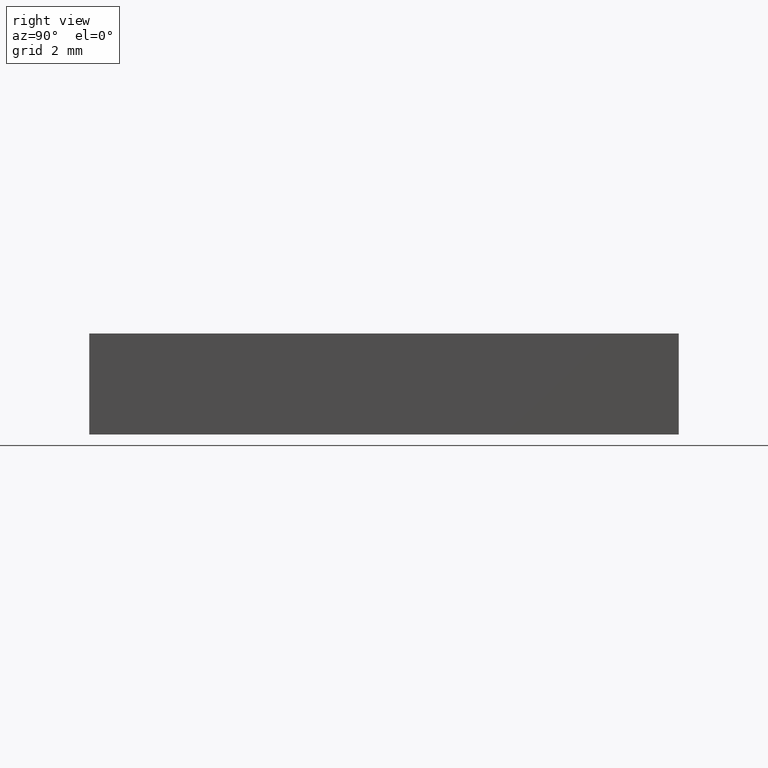
[diagram: clean part render]
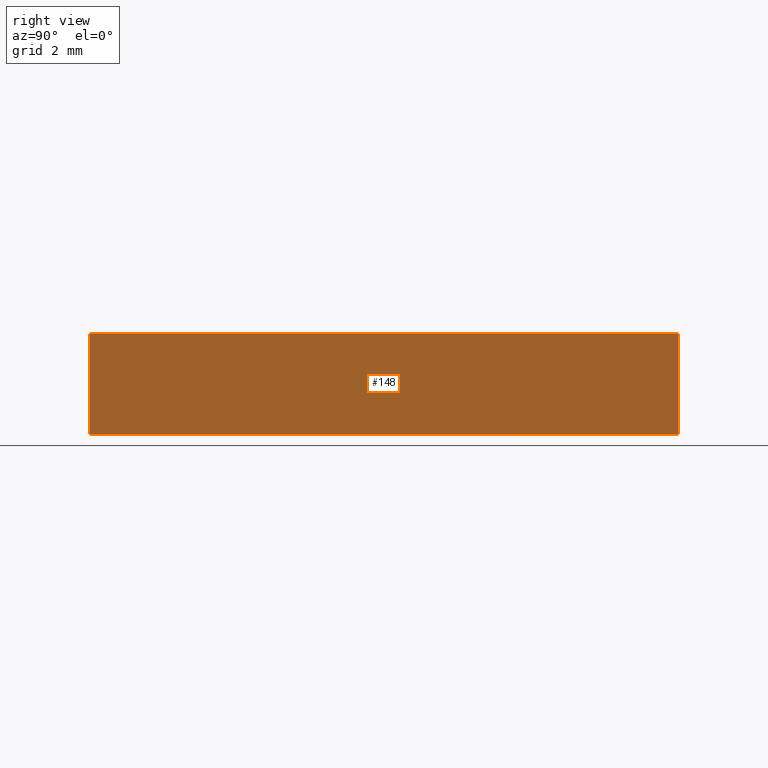
[diagram: same view with one face highlighted and labeled with its STEP entity id]
A machine part, right view. The second image highlights one B-rep face of the part: STEP entity #148.
In plain terms, the highlighted planar face has unit normal (-1, -0, 0).
Its self-contained STEP definition (entity closure, byte-faithful):
#7 = LINE ( 'NONE', #245, #56 ) ;
#20 = LINE ( 'NONE', #299, #270 ) ;
#25 = CARTESIAN_POINT ( 'NONE',  ( 6.148373983739839200, 7.520325203252024700, 0.0000000000000000000 ) ) ;
#32 = LINE ( 'NONE', #266, #207 ) ;
#44 = EDGE_CURVE ( 'NONE', #196, #201, #20, .T. ) ;
#52 = ORIENTED_EDGE ( 'NONE', *, *, #121, .T. ) ;
#56 = VECTOR ( 'NONE', #202, 1000.000000000000000 ) ;
#69 = DIRECTION ( 'NONE',  ( -4.956352788505162800E-017, 1.000000000000000000, -0.0000000000000000000 ) ) ;
#114 = AXIS2_PLACEMENT_3D ( 'NONE', #118, #198, #286 ) ;
#118 = CARTESIAN_POINT ( 'NONE',  ( 6.148373983739839200, 7.520325203252024700, 3.000000000000000000 ) ) ;
#121 = EDGE_CURVE ( 'NONE', #201, #285, #183, .T. ) ;
#126 = DIRECTION ( 'NONE',  ( -4.956352788505162800E-017, 1.000000000000000000, -0.0000000000000000000 ) ) ;
#137 = DIRECTION ( 'NONE',  ( -0.0000000000000000000, -0.0000000000000000000, -1.000000000000000000 ) ) ;
#140 = EDGE_CURVE ( 'NONE', #196, #264, #32, .T. ) ;
#145 = CARTESIAN_POINT ( 'NONE',  ( 6.148373983739839200, 7.520325203252024700, 0.0000000000000000000 ) ) ;
#148 = ADVANCED_FACE ( 'NONE', ( #155 ), #306, .F. ) ;
#155 = FACE_OUTER_BOUND ( 'NONE', #275, .T. ) ;
#169 = CARTESIAN_POINT ( 'NONE',  ( 6.148373983739840100, -9.979674796747977100, 0.0000000000000000000 ) ) ;
#183 = LINE ( 'NONE', #145, #236 ) ;
#184 = ORIENTED_EDGE ( 'NONE', *, *, #199, .F. ) ;
#194 = CARTESIAN_POINT ( 'NONE',  ( 6.148373983739840100, -9.979674796747977100, 3.000000000000000000 ) ) ;
#196 = VERTEX_POINT ( 'NONE', #194 ) ;
#198 = DIRECTION ( 'NONE',  ( -1.000000000000000000, -4.956352788505162800E-017, 0.0000000000000000000 ) ) ;
#199 = EDGE_CURVE ( 'NONE', #264, #285, #7, .T. ) ;
#201 = VERTEX_POINT ( 'NONE', #169 ) ;
#202 = DIRECTION ( 'NONE',  ( -0.0000000000000000000, -0.0000000000000000000, -1.000000000000000000 ) ) ;
#207 = VECTOR ( 'NONE', #126, 1000.000000000000000 ) ;
#213 = ORIENTED_EDGE ( 'NONE', *, *, #140, .F. ) ;
#224 = ORIENTED_EDGE ( 'NONE', *, *, #44, .T. ) ;
#236 = VECTOR ( 'NONE', #69, 1000.000000000000000 ) ;
#245 = CARTESIAN_POINT ( 'NONE',  ( 6.148373983739839200, 7.520325203252024700, 3.000000000000000000 ) ) ;
#264 = VERTEX_POINT ( 'NONE', #268 ) ;
#266 = CARTESIAN_POINT ( 'NONE',  ( 6.148373983739839200, 7.520325203252024700, 3.000000000000000000 ) ) ;
#268 = CARTESIAN_POINT ( 'NONE',  ( 6.148373983739839200, 7.520325203252024700, 3.000000000000000000 ) ) ;
#270 = VECTOR ( 'NONE', #137, 1000.000000000000000 ) ;
#275 = EDGE_LOOP ( 'NONE', ( #52, #184, #213, #224 ) ) ;
#285 = VERTEX_POINT ( 'NONE', #25 ) ;
#286 = DIRECTION ( 'NONE',  ( 4.956352788505162800E-017, -1.000000000000000000, 0.0000000000000000000 ) ) ;
#299 = CARTESIAN_POINT ( 'NONE',  ( 6.148373983739840100, -9.979674796747977100, 3.000000000000000000 ) ) ;
#306 = PLANE ( 'NONE',  #114 ) ;